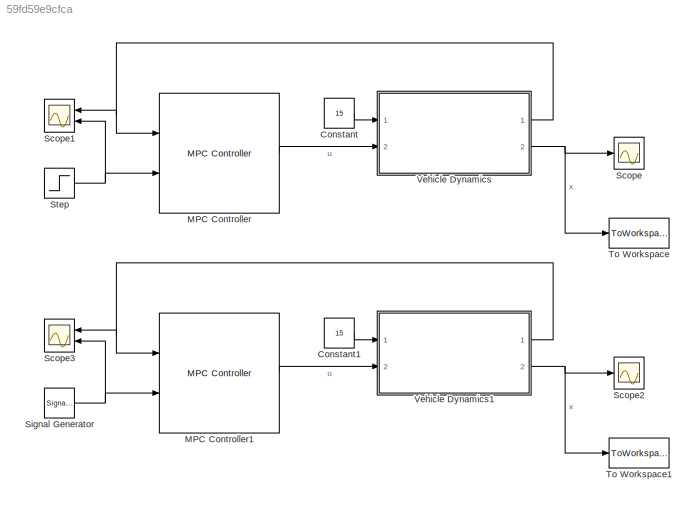
MODEL slx_59fd59e9cfca
KIND model
CONFIG AbsTol = auto
CONFIG EnableMultiTasking = off
CONFIG FixedStep = auto
CONFIG MaxStep = auto
CONFIG MinStep = auto
CONFIG RelTol = 1e-3
CONFIG SampleTimeConstraint = Unconstrained
CONFIG Solver = FixedStepAuto
CONFIG SolverName = FixedStepAuto
CONFIG StartTime = 0.0
CONFIG StopTime = 10.0
BLOCK [Constant] Constant
  Value = 15
BLOCK [Constant] Constant1
  Value = 15
BLOCK [Reference] MPC Controller  REF=mpclib/MPC Controller  (lib defined in mdl_ae329e0e0455)
  Ports = [2, 1]
  SCDEnableBlockLinearizationSpecification = on
  SourceBlock = mpclib/MPC Controller
  SourceProductBaseCode = MP
  SourceProductName = Model Predictive Control Toolbox
  SourceType = MPC
BLOCK [Reference] MPC Controller1  REF=mpclib/MPC Controller  (lib defined in mdl_ae329e0e0455)
  Ports = [2, 1]
  SCDEnableBlockLinearizationSpecification = on
  SourceBlock = mpclib/MPC Controller
  SourceProductBaseCode = MP
  SourceProductName = Model Predictive Control Toolbox
  SourceType = MPC
BLOCK [Scope] Scope
  Floating = off
  NumInputPorts = 1
  Ports = [1]
  ScopeSpecificationString = Simulink.scopes.TimeScopeBlockCfg('CurrentConfiguration', extmgr.ConfigurationSet(extmgr.Configuration('Core','General UI',true),extmgr.Configuration('Core','Source UI',true),extmgr.Configuration('Sources','WiredSimulink',true),extmgr.Configuration('Visuals','Time Domain',true),extmgr.Configuration('Tools','Plot Navigation',true),extmgr.Configuration('Tools','Measurements',true)),'Version','2018b'...<+1ch>
BLOCK [Scope] Scope1
  Floating = off
  NumInputPorts = 2
  Ports = [2]
  ScopeSpecificationString = Simulink.scopes.TimeScopeBlockCfg('CurrentConfiguration', extmgr.ConfigurationSet(extmgr.Configuration('Core','General UI',true),extmgr.Configuration('Core','Source UI',true),extmgr.Configuration('Sources','WiredSimulink',true,'DataLoggingVariableName','ScopeData1'),extmgr.Configuration('Visuals','Time Domain',true,'SerializedDisplays',{struct('MinYLimReal','-18.75','MaxYLimReal','18.75','YLabelRe...<+1531ch>
BLOCK [Scope] Scope2
  Floating = off
  NumInputPorts = 1
  Ports = [1]
  ScopeSpecificationString = Simulink.scopes.TimeScopeBlockCfg('CurrentConfiguration', extmgr.ConfigurationSet(extmgr.Configuration('Core','General UI',true),extmgr.Configuration('Core','Source UI',true),extmgr.Configuration('Sources','WiredSimulink',true,'DataLoggingVariableName','ScopeData1'),extmgr.Configuration('Visuals','Time Domain',true),extmgr.Configuration('Tools','Plot Navigation',true),extmgr.Configuration('Tools',...<+40ch>
BLOCK [Scope] Scope3
  Floating = off
  NumInputPorts = 2
  Ports = [2]
  ScopeSpecificationString = Simulink.scopes.TimeScopeBlockCfg('CurrentConfiguration', extmgr.ConfigurationSet(extmgr.Configuration('Core','General UI',true),extmgr.Configuration('Core','Source UI',true),extmgr.Configuration('Sources','WiredSimulink',true,'DataLoggingVariableName','ScopeData2'),extmgr.Configuration('Visuals','Time Domain',true,'SerializedDisplays',{struct('MinYLimReal','-18.75','MaxYLimReal','18.75','YLabelRe...<+1531ch>
BLOCK [SignalGenerator] Signal Generator
  Frequency = 2
  Ports = [0, 1]
  Units = rad/sec
BLOCK [Step] Step
  SampleTime = 0
  Time = 0.5
BLOCK [ToWorkspace] To Workspace
  FixptAsFi = on
  MaxDataPoints = inf
  Ports = [1]
  SampleTime = 0.01
  SaveFormat = Timeseries
  VariableName = LMPC_step15ms
BLOCK [ToWorkspace] To Workspace1
  FixptAsFi = on
  MaxDataPoints = inf
  Ports = [1]
  SampleTime = 0.01
  SaveFormat = Timeseries
  VariableName = LMPC_step15ms1
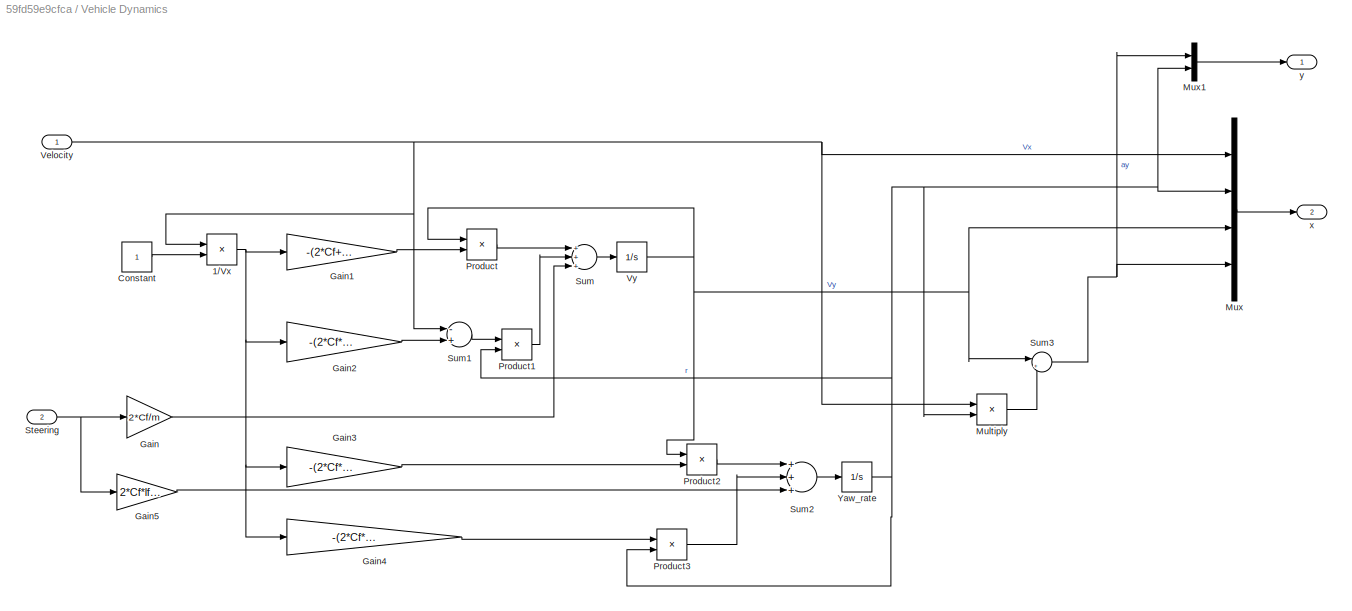
BLOCK [SubSystem] Vehicle Dynamics
  Ports = [2, 2]
  RequestExecContextInheritance = off
BLOCK [Product] Vehicle Dynamics/1//Vx
  InputSameDT = off
  Inputs = /*
  OutDataTypeStr = Inherit: Inherit via internal rule
  Ports = [2, 1]
  RndMeth = Floor
  SaturateOnIntegerOverflow = off
BLOCK [Constant] Vehicle Dynamics/Constant
BLOCK [Gain] Vehicle Dynamics/Gain
  Gain = 2*Cf/m
  OutDataTypeStr = Inherit: Inherit via internal rule
  ParamDataTypeStr = Inherit: Inherit via internal rule
  SaturateOnIntegerOverflow = off
BLOCK [Gain] Vehicle Dynamics/Gain1
  Gain = -(2*Cf+2*Cr)/m
  OutDataTypeStr = Inherit: Inherit via internal rule
  ParamDataTypeStr = Inherit: Inherit via internal rule
  SaturateOnIntegerOverflow = off
BLOCK [Gain] Vehicle Dynamics/Gain2
  Gain = -(2*Cf*lf-2*Cr*lr)/m
  OutDataTypeStr = Inherit: Inherit via internal rule
  ParamDataTypeStr = Inherit: Inherit via internal rule
  SaturateOnIntegerOverflow = off
BLOCK [Gain] Vehicle Dynamics/Gain3
  Gain = -(2*Cf*lf-2*Cr*lr)/Iz
  OutDataTypeStr = Inherit: Inherit via internal rule
  ParamDataTypeStr = Inherit: Inherit via internal rule
  SaturateOnIntegerOverflow = off
BLOCK [Gain] Vehicle Dynamics/Gain4
  Gain = -(2*Cf*lf^2+2*Cr*lr^2)/Iz
  OutDataTypeStr = Inherit: Inherit via internal rule
  ParamDataTypeStr = Inherit: Inherit via internal rule
  SaturateOnIntegerOverflow = off
BLOCK [Gain] Vehicle Dynamics/Gain5
  Gain = 2*Cf*lf/Iz
  OutDataTypeStr = Inherit: Inherit via internal rule
  ParamDataTypeStr = Inherit: Inherit via internal rule
  SaturateOnIntegerOverflow = off
BLOCK [Product] Vehicle Dynamics/Multiply
  InputSameDT = off
  OutDataTypeStr = Inherit: Inherit via internal rule
  Ports = [2, 1]
  RndMeth = Floor
  SaturateOnIntegerOverflow = off
BLOCK [Mux] Vehicle Dynamics/Mux
  DisplayOption = bar
  Ports = [4, 1]
BLOCK [Mux] Vehicle Dynamics/Mux1
  DisplayOption = bar
  Inputs = 2
  Ports = [2, 1]
BLOCK [Product] Vehicle Dynamics/Product
  InputSameDT = off
  OutDataTypeStr = Inherit: Inherit via internal rule
  Ports = [2, 1]
  RndMeth = Floor
  SaturateOnIntegerOverflow = off
BLOCK [Product] Vehicle Dynamics/Product1
  InputSameDT = off
  OutDataTypeStr = Inherit: Inherit via internal rule
  Ports = [2, 1]
  RndMeth = Floor
  SaturateOnIntegerOverflow = off
BLOCK [Product] Vehicle Dynamics/Product2
  InputSameDT = off
  OutDataTypeStr = Inherit: Inherit via internal rule
  Ports = [2, 1]
  RndMeth = Floor
  SaturateOnIntegerOverflow = off
BLOCK [Product] Vehicle Dynamics/Product3
  InputSameDT = off
  OutDataTypeStr = Inherit: Inherit via internal rule
  Ports = [2, 1]
  RndMeth = Floor
  SaturateOnIntegerOverflow = off
BLOCK [Inport] Vehicle Dynamics/Steering
  IconDisplay = Port number
  Port = 2
BLOCK [Sum] Vehicle Dynamics/Sum
  InputSameDT = off
  Inputs = +++
  OutDataTypeStr = Inherit: Inherit via internal rule
  Ports = [3, 1]
  SaturateOnIntegerOverflow = off
BLOCK [Sum] Vehicle Dynamics/Sum1
  InputSameDT = off
  Inputs = -+
  OutDataTypeStr = Inherit: Inherit via internal rule
  Ports = [2, 1]
  SaturateOnIntegerOverflow = off
BLOCK [Sum] Vehicle Dynamics/Sum2
  InputSameDT = off
  Inputs = +++
  OutDataTypeStr = Inherit: Inherit via internal rule
  Ports = [3, 1]
  SaturateOnIntegerOverflow = off
BLOCK [Sum] Vehicle Dynamics/Sum3
  IconShape = round
  InputSameDT = off
  Inputs = |++
  OutDataTypeStr = Inherit: Inherit via internal rule
  Ports = [2, 1]
  SaturateOnIntegerOverflow = off
BLOCK [Inport] Vehicle Dynamics/Velocity
  IconDisplay = Port number
BLOCK [Integrator] Vehicle Dynamics/Vy
  Ports = [1, 1]
BLOCK [Integrator] Vehicle Dynamics/Yaw_rate 
  Ports = [1, 1]
BLOCK [Outport] Vehicle Dynamics/x
  IconDisplay = Port number
  Port = 2
BLOCK [Outport] Vehicle Dynamics/y 
  IconDisplay = Port number
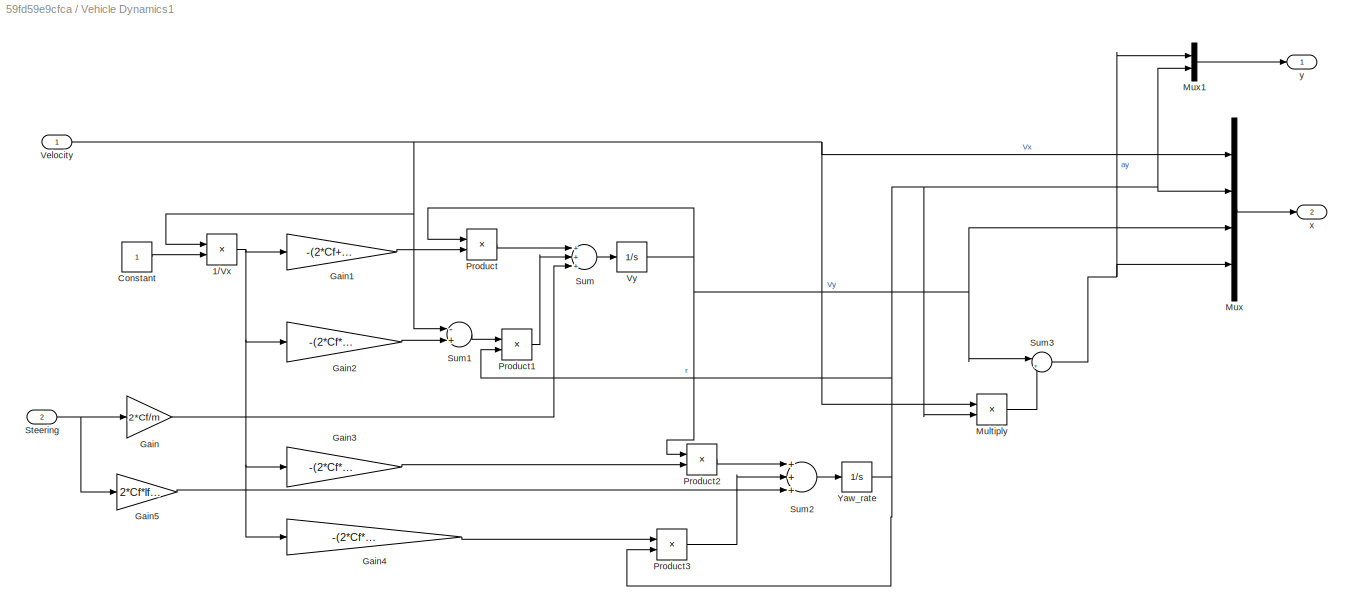
BLOCK [SubSystem] Vehicle Dynamics1
  Ports = [2, 2]
  RequestExecContextInheritance = off
BLOCK [Product] Vehicle Dynamics1/1//Vx
  InputSameDT = off
  Inputs = /*
  OutDataTypeStr = Inherit: Inherit via internal rule
  Ports = [2, 1]
  RndMeth = Floor
  SaturateOnIntegerOverflow = off
BLOCK [Constant] Vehicle Dynamics1/Constant
BLOCK [Gain] Vehicle Dynamics1/Gain
  Gain = 2*Cf/m
  OutDataTypeStr = Inherit: Inherit via internal rule
  ParamDataTypeStr = Inherit: Inherit via internal rule
  SaturateOnIntegerOverflow = off
BLOCK [Gain] Vehicle Dynamics1/Gain1
  Gain = -(2*Cf+2*Cr)/m
  OutDataTypeStr = Inherit: Inherit via internal rule
  ParamDataTypeStr = Inherit: Inherit via internal rule
  SaturateOnIntegerOverflow = off
BLOCK [Gain] Vehicle Dynamics1/Gain2
  Gain = -(2*Cf*lf-2*Cr*lr)/m
  OutDataTypeStr = Inherit: Inherit via internal rule
  ParamDataTypeStr = Inherit: Inherit via internal rule
  SaturateOnIntegerOverflow = off
BLOCK [Gain] Vehicle Dynamics1/Gain3
  Gain = -(2*Cf*lf-2*Cr*lr)/Iz
  OutDataTypeStr = Inherit: Inherit via internal rule
  ParamDataTypeStr = Inherit: Inherit via internal rule
  SaturateOnIntegerOverflow = off
BLOCK [Gain] Vehicle Dynamics1/Gain4
  Gain = -(2*Cf*lf^2+2*Cr*lr^2)/Iz
  OutDataTypeStr = Inherit: Inherit via internal rule
  ParamDataTypeStr = Inherit: Inherit via internal rule
  SaturateOnIntegerOverflow = off
BLOCK [Gain] Vehicle Dynamics1/Gain5
  Gain = 2*Cf*lf/Iz
  OutDataTypeStr = Inherit: Inherit via internal rule
  ParamDataTypeStr = Inherit: Inherit via internal rule
  SaturateOnIntegerOverflow = off
BLOCK [Product] Vehicle Dynamics1/Multiply
  InputSameDT = off
  OutDataTypeStr = Inherit: Inherit via internal rule
  Ports = [2, 1]
  RndMeth = Floor
  SaturateOnIntegerOverflow = off
BLOCK [Mux] Vehicle Dynamics1/Mux
  DisplayOption = bar
  Ports = [4, 1]
BLOCK [Mux] Vehicle Dynamics1/Mux1
  DisplayOption = bar
  Inputs = 2
  Ports = [2, 1]
BLOCK [Product] Vehicle Dynamics1/Product
  InputSameDT = off
  OutDataTypeStr = Inherit: Inherit via internal rule
  Ports = [2, 1]
  RndMeth = Floor
  SaturateOnIntegerOverflow = off
BLOCK [Product] Vehicle Dynamics1/Product1
  InputSameDT = off
  OutDataTypeStr = Inherit: Inherit via internal rule
  Ports = [2, 1]
  RndMeth = Floor
  SaturateOnIntegerOverflow = off
BLOCK [Product] Vehicle Dynamics1/Product2
  InputSameDT = off
  OutDataTypeStr = Inherit: Inherit via internal rule
  Ports = [2, 1]
  RndMeth = Floor
  SaturateOnIntegerOverflow = off
BLOCK [Product] Vehicle Dynamics1/Product3
  InputSameDT = off
  OutDataTypeStr = Inherit: Inherit via internal rule
  Ports = [2, 1]
  RndMeth = Floor
  SaturateOnIntegerOverflow = off
BLOCK [Inport] Vehicle Dynamics1/Steering
  IconDisplay = Port number
  Port = 2
BLOCK [Sum] Vehicle Dynamics1/Sum
  InputSameDT = off
  Inputs = +++
  OutDataTypeStr = Inherit: Inherit via internal rule
  Ports = [3, 1]
  SaturateOnIntegerOverflow = off
BLOCK [Sum] Vehicle Dynamics1/Sum1
  InputSameDT = off
  Inputs = -+
  OutDataTypeStr = Inherit: Inherit via internal rule
  Ports = [2, 1]
  SaturateOnIntegerOverflow = off
BLOCK [Sum] Vehicle Dynamics1/Sum2
  InputSameDT = off
  Inputs = +++
  OutDataTypeStr = Inherit: Inherit via internal rule
  Ports = [3, 1]
  SaturateOnIntegerOverflow = off
BLOCK [Sum] Vehicle Dynamics1/Sum3
  IconShape = round
  InputSameDT = off
  Inputs = |++
  OutDataTypeStr = Inherit: Inherit via internal rule
  Ports = [2, 1]
  SaturateOnIntegerOverflow = off
BLOCK [Inport] Vehicle Dynamics1/Velocity
  IconDisplay = Port number
BLOCK [Integrator] Vehicle Dynamics1/Vy
  Ports = [1, 1]
BLOCK [Integrator] Vehicle Dynamics1/Yaw_rate 
  Ports = [1, 1]
BLOCK [Outport] Vehicle Dynamics1/x
  IconDisplay = Port number
  Port = 2
BLOCK [Outport] Vehicle Dynamics1/y 
  IconDisplay = Port number
LINE Constant1:1 -> Vehicle Dynamics1:1
LINE Constant:1 -> Vehicle Dynamics:1
LINE MPC Controller1:1 -> Vehicle Dynamics1:2
LINE MPC Controller:1 -> Vehicle Dynamics:2
NET Signal Generator:1 -> MPC Controller1:2, Scope3:2
NET Step:1 -> MPC Controller:2, Scope1:2
NET Vehicle Dynamics/1//Vx:1 -> Vehicle Dynamics/Gain1:1, Vehicle Dynamics/Gain2:1, Vehicle Dynamics/Gain3:1, Vehicle Dynamics/Gain4:1
LINE Vehicle Dynamics/Constant:1 -> Vehicle Dynamics/1//Vx:2
LINE Vehicle Dynamics/Gain1:1 -> Vehicle Dynamics/Product:2
LINE Vehicle Dynamics/Gain2:1 -> Vehicle Dynamics/Sum1:2
LINE Vehicle Dynamics/Gain3:1 -> Vehicle Dynamics/Product2:2
LINE Vehicle Dynamics/Gain4:1 -> Vehicle Dynamics/Product3:1
LINE Vehicle Dynamics/Gain5:1 -> Vehicle Dynamics/Sum2:3
LINE Vehicle Dynamics/Gain:1 -> Vehicle Dynamics/Sum:3
LINE Vehicle Dynamics/Multiply:1 -> Vehicle Dynamics/Sum3:2
LINE Vehicle Dynamics/Mux1:1 -> Vehicle Dynamics/y :1
LINE Vehicle Dynamics/Mux:1 -> Vehicle Dynamics/x:1
LINE Vehicle Dynamics/Product1:1 -> Vehicle Dynamics/Sum:2
LINE Vehicle Dynamics/Product2:1 -> Vehicle Dynamics/Sum2:1
LINE Vehicle Dynamics/Product3:1 -> Vehicle Dynamics/Sum2:2
LINE Vehicle Dynamics/Product:1 -> Vehicle Dynamics/Sum:1
NET Vehicle Dynamics/Steering:1 -> Vehicle Dynamics/Gain5:1, Vehicle Dynamics/Gain:1
LINE Vehicle Dynamics/Sum1:1 -> Vehicle Dynamics/Product1:1
LINE Vehicle Dynamics/Sum2:1 -> Vehicle Dynamics/Yaw_rate :1
NET Vehicle Dynamics/Sum3:1 -> Vehicle Dynamics/Mux1:1, Vehicle Dynamics/Mux:4
LINE Vehicle Dynamics/Sum:1 -> Vehicle Dynamics/Vy:1
NET Vehicle Dynamics/Velocity:1 -> Vehicle Dynamics/1//Vx:1, Vehicle Dynamics/Multiply:1, Vehicle Dynamics/Mux:1, Vehicle Dynamics/Sum1:1
NET Vehicle Dynamics/Vy:1 -> Vehicle Dynamics/Mux:3, Vehicle Dynamics/Product2:1, Vehicle Dynamics/Product:1, Vehicle Dynamics/Sum3:1
NET Vehicle Dynamics/Yaw_rate :1 -> Vehicle Dynamics/Multiply:2, Vehicle Dynamics/Mux1:2, Vehicle Dynamics/Mux:2, Vehicle Dynamics/Product1:2, Vehicle Dynamics/Product3:2
NET Vehicle Dynamics1/1//Vx:1 -> Vehicle Dynamics1/Gain1:1, Vehicle Dynamics1/Gain2:1, Vehicle Dynamics1/Gain3:1, Vehicle Dynamics1/Gain4:1
LINE Vehicle Dynamics1/Constant:1 -> Vehicle Dynamics1/1//Vx:2
LINE Vehicle Dynamics1/Gain1:1 -> Vehicle Dynamics1/Product:2
LINE Vehicle Dynamics1/Gain2:1 -> Vehicle Dynamics1/Sum1:2
LINE Vehicle Dynamics1/Gain3:1 -> Vehicle Dynamics1/Product2:2
LINE Vehicle Dynamics1/Gain4:1 -> Vehicle Dynamics1/Product3:1
LINE Vehicle Dynamics1/Gain5:1 -> Vehicle Dynamics1/Sum2:3
LINE Vehicle Dynamics1/Gain:1 -> Vehicle Dynamics1/Sum:3
LINE Vehicle Dynamics1/Multiply:1 -> Vehicle Dynamics1/Sum3:2
LINE Vehicle Dynamics1/Mux1:1 -> Vehicle Dynamics1/y :1
LINE Vehicle Dynamics1/Mux:1 -> Vehicle Dynamics1/x:1
LINE Vehicle Dynamics1/Product1:1 -> Vehicle Dynamics1/Sum:2
LINE Vehicle Dynamics1/Product2:1 -> Vehicle Dynamics1/Sum2:1
LINE Vehicle Dynamics1/Product3:1 -> Vehicle Dynamics1/Sum2:2
LINE Vehicle Dynamics1/Product:1 -> Vehicle Dynamics1/Sum:1
NET Vehicle Dynamics1/Steering:1 -> Vehicle Dynamics1/Gain5:1, Vehicle Dynamics1/Gain:1
LINE Vehicle Dynamics1/Sum1:1 -> Vehicle Dynamics1/Product1:1
LINE Vehicle Dynamics1/Sum2:1 -> Vehicle Dynamics1/Yaw_rate :1
NET Vehicle Dynamics1/Sum3:1 -> Vehicle Dynamics1/Mux1:1, Vehicle Dynamics1/Mux:4
LINE Vehicle Dynamics1/Sum:1 -> Vehicle Dynamics1/Vy:1
NET Vehicle Dynamics1/Velocity:1 -> Vehicle Dynamics1/1//Vx:1, Vehicle Dynamics1/Multiply:1, Vehicle Dynamics1/Mux:1, Vehicle Dynamics1/Sum1:1
NET Vehicle Dynamics1/Vy:1 -> Vehicle Dynamics1/Mux:3, Vehicle Dynamics1/Product2:1, Vehicle Dynamics1/Product:1, Vehicle Dynamics1/Sum3:1
NET Vehicle Dynamics1/Yaw_rate :1 -> Vehicle Dynamics1/Multiply:2, Vehicle Dynamics1/Mux1:2, Vehicle Dynamics1/Mux:2, Vehicle Dynamics1/Product1:2, Vehicle Dynamics1/Product3:2
NET Vehicle Dynamics1:1 -> MPC Controller1:1, Scope3:1
NET Vehicle Dynamics1:2 -> Scope2:1, To Workspace1:1
NET Vehicle Dynamics:1 -> MPC Controller:1, Scope1:1
NET Vehicle Dynamics:2 -> Scope:1, To Workspace:1
note: NET lines group one-source signal fan-out (src -> all destinations, sorted); 1:1 wires keep LINE
